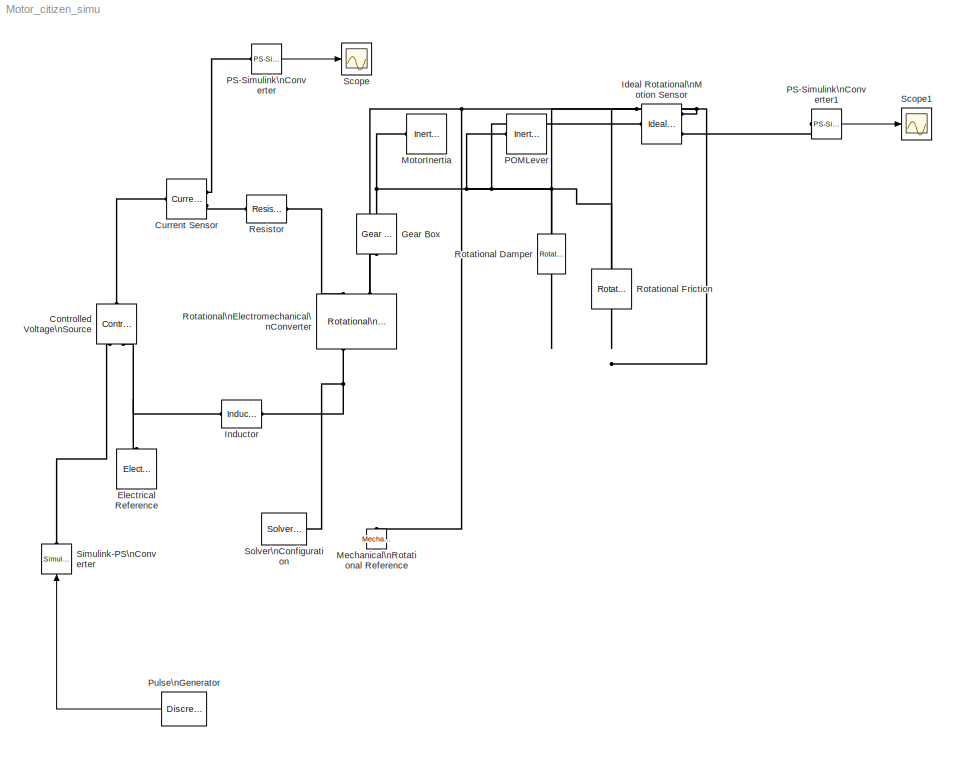
MODEL Motor_citizen_simu
KIND model
BLOCK [Reference] Controlled Voltage\nSource  REF=fl_lib/Electrical/Electrical Sources/Controlled Voltage\nSource
  ClassName = controlled_voltage_source
  DialogController = NetworkEngine.DynNeDlgSource
  FunctionWithSeparateData = off
  LocalVarDescs = |Current (A)|Voltage (V)|Power (W)
  LocalVarLogging = [0 0 0]
  LocalVarNames = |current|voltage|power
  Ports = [0, 0, 0, 0, 0, 1, 2]
  RTWMemSecDataConstants = Inherit from model
  RTWMemSecDataInternal = Inherit from model
  RTWMemSecDataParameters = Inherit from model
  RTWMemSecFuncExecute = Inherit from model
  RTWMemSecFuncInitTerm = Inherit from model
  SchemaVersion = 1
  ShowPortLabels = FromPortIcon
  SourceBlock = fl_lib/Electrical/Electrical Sources/Controlled Voltage\nSource
  SourceType = Controlled Voltage\nSource
  SystemSampleTime = -1
  current_Log = off
  power_Log = off
  voltage_Log = off
BLOCK [Reference] Current Sensor  REF=fl_lib/Electrical/Electrical Sensors/Current Sensor
  ClassName = sensor_current
  DialogController = NetworkEngine.DynNeDlgSource
  FunctionWithSeparateData = off
  LocalVarLogging = []
  Ports = [0, 0, 0, 0, 0, 1, 2]
  RTWMemSecDataConstants = Inherit from model
  RTWMemSecDataInternal = Inherit from model
  RTWMemSecDataParameters = Inherit from model
  RTWMemSecFuncExecute = Inherit from model
  RTWMemSecFuncInitTerm = Inherit from model
  SchemaVersion = 1
  ShowPortLabels = FromPortIcon
  SourceBlock = fl_lib/Electrical/Electrical Sensors/Current Sensor
  SourceType = Current Sensor
  SystemSampleTime = -1
BLOCK [Reference] Electrical Reference  REF=fl_lib/Electrical/Electrical Elements/Electrical Reference
  ClassName = reference_electrical
  DialogController = NetworkEngine.DynNeDlgSource
  FunctionWithSeparateData = off
  LocalVarLogging = []
  Ports = [0, 0, 0, 0, 0, 1]
  RTWMemSecDataConstants = Inherit from model
  RTWMemSecDataInternal = Inherit from model
  RTWMemSecDataParameters = Inherit from model
  RTWMemSecFuncExecute = Inherit from model
  RTWMemSecFuncInitTerm = Inherit from model
  SchemaVersion = 1
  ShowPortLabels = FromPortIcon
  SourceBlock = fl_lib/Electrical/Electrical Elements/Electrical Reference
  SourceType = Electrical Reference
  SystemSampleTime = -1
BLOCK [Reference] Gear Box  REF=fl_lib/Mechanical/Mechanisms/Gear Box
  ClassName = gear_box
  DialogController = NetworkEngine.DynNeDlgSource
  FunctionWithSeparateData = off
  LocalVarDescs = |Input shaft torque (N*m)|Input shaft angular velocity (rad/s)|Power transmitted by the box (W)
  LocalVarLogging = [0 0 0]
  LocalVarNames = |torque_inp|ang_velocity_inp|power
  Ports = [0, 0, 0, 0, 0, 1, 1]
  RTWMemSecDataConstants = Inherit from model
  RTWMemSecDataInternal = Inherit from model
  RTWMemSecDataParameters = Inherit from model
  RTWMemSecFuncExecute = Inherit from model
  RTWMemSecFuncInitTerm = Inherit from model
  SchemaVersion = 1
  ShowPortLabels = FromPortIcon
  SourceBlock = fl_lib/Mechanical/Mechanisms/Gear Box
  SourceType = Gear Box
  SystemSampleTime = -1
  ang_velocity_inp_Log = off
  power_Log = off
  ratio = 15.58
  ratio_unit = 1
  torque_inp_Log = off
BLOCK [Reference] Ideal Rotational\nMotion Sensor  REF=fl_lib/Mechanical/Mechanical Sensors\nand Sources/Ideal Rotational\nMotion Sensor
  ClassName = sensor_rot_motion
  DialogController = NetworkEngine.DynNeDlgSource
  FunctionWithSeparateData = off
  LocalVarLogging = []
  Ports = [0, 0, 0, 0, 0, 1, 3]
  RTWMemSecDataConstants = Inherit from model
  RTWMemSecDataInternal = Inherit from model
  RTWMemSecDataParameters = Inherit from model
  RTWMemSecFuncExecute = Inherit from model
  RTWMemSecFuncInitTerm = Inherit from model
  SchemaVersion = 1
  ShowPortLabels = FromPortIcon
  SourceBlock = fl_lib/Mechanical/Mechanical Sensors\nand Sources/Ideal Rotational\nMotion Sensor
  SourceType = Ideal Rotational\nMotion Sensor
  SystemSampleTime = -1
  offset = 0
  offset_unit = rad
BLOCK [Reference] Inductor  REF=fl_lib/Electrical/Electrical Elements/Inductor
  ClassName = inductor
  DialogController = NetworkEngine.DynNeDlgSource
  FunctionWithSeparateData = off
  LocalVarDescs = |Inductor current (A) |Voltage across inductor (V)|Power (W)
  LocalVarLogging = [0 0 0]
  LocalVarNames = |current|voltage|power
  Ports = [0, 0, 0, 0, 0, 1, 1]
  RTWMemSecDataConstants = Inherit from model
  RTWMemSecDataInternal = Inherit from model
  RTWMemSecDataParameters = Inherit from model
  RTWMemSecFuncExecute = Inherit from model
  RTWMemSecFuncInitTerm = Inherit from model
  SchemaVersion = 1
  ShowPortLabels = FromPortIcon
  SourceBlock = fl_lib/Electrical/Electrical Elements/Inductor
  SourceType = Inductor
  SystemSampleTime = -1
  current_Log = off
  g = 1e-09
  g_unit = 1/Ohm
  i0 = 0
  i0_unit = A
  l = 464e-06
  l_unit = H
  power_Log = off
  r = 0
  r_unit = Ohm
  voltage_Log = off
BLOCK [Reference] Mechanical\nRotational Reference  REF=fl_lib/Mechanical/Rotational Elements/Mechanical\nRotational Reference
  ClassName = reference_rot
  DialogController = NetworkEngine.DynNeDlgSource
  FunctionWithSeparateData = off
  LocalVarLogging = []
  Ports = [0, 0, 0, 0, 0, 1]
  RTWMemSecDataConstants = Inherit from model
  RTWMemSecDataInternal = Inherit from model
  RTWMemSecDataParameters = Inherit from model
  RTWMemSecFuncExecute = Inherit from model
  RTWMemSecFuncInitTerm = Inherit from model
  SchemaVersion = 1
  ShowPortLabels = FromPortIcon
  SourceBlock = fl_lib/Mechanical/Rotational Elements/Mechanical\nRotational Reference
  SourceType = Mechanical\nRotational Reference
  SystemSampleTime = -1
BLOCK [Reference] MotorInertia  REF=fl_lib/Mechanical/Rotational Elements/Inertia
  ClassName = inertia
  DialogController = NetworkEngine.DynNeDlgSource
  FunctionWithSeparateData = off
  LocalVarDescs = |Inertia torque (N*m)|Inertia absolute velocity (rad/s)
  LocalVarLogging = [0 0]
  LocalVarNames = |torque|velocity
  Ports = [0, 0, 0, 0, 0, 1]
  RTWMemSecDataConstants = Inherit from model
  RTWMemSecDataInternal = Inherit from model
  RTWMemSecDataParameters = Inherit from model
  RTWMemSecFuncExecute = Inherit from model
  RTWMemSecFuncInitTerm = Inherit from model
  SchemaVersion = 1
  ShowPortLabels = FromPortIcon
  SourceBlock = fl_lib/Mechanical/Rotational Elements/Inertia
  SourceType = Inertia
  SystemSampleTime = -1
  inertia = 0.841
  inertia_unit = g*cm^2
  initial_velocity = 0
  initial_velocity_unit = rad/s
  torque_Log = off
  velocity_Log = off
BLOCK [Reference] POMLever  REF=fl_lib/Mechanical/Rotational Elements/Inertia
  ClassName = inertia
  DialogController = NetworkEngine.DynNeDlgSource
  FunctionWithSeparateData = off
  LocalVarDescs = |Inertia torque (N*m)|Inertia absolute velocity (rad/s)
  LocalVarLogging = [0 0]
  LocalVarNames = |torque|velocity
  Ports = [0, 0, 0, 0, 0, 1]
  RTWMemSecDataConstants = Inherit from model
  RTWMemSecDataInternal = Inherit from model
  RTWMemSecDataParameters = Inherit from model
  RTWMemSecFuncExecute = Inherit from model
  RTWMemSecFuncInitTerm = Inherit from model
  SchemaVersion = 1
  ShowPortLabels = FromPortIcon
  SourceBlock = fl_lib/Mechanical/Rotational Elements/Inertia
  SourceType = Inertia
  SystemSampleTime = -1
  inertia = 1.613
  inertia_unit = g*cm^2
  initial_velocity = 0
  initial_velocity_unit = rad/s
  torque_Log = off
  velocity_Log = off
BLOCK [Reference] PS-Simulink\nConverter  REF=nesl_utility/PS-Simulink\nConverter
  AffineConversion = off
  DialogController = NetworkEngine.DynNeUtilDlgSource
  FunctionWithSeparateData = off
  LeftPortType = input
  PhysicalDomain = network_engine_domain
  Ports = [0, 1, 0, 0, 0, 1]
  RTWMemSecDataConstants = Inherit from model
  RTWMemSecDataInternal = Inherit from model
  RTWMemSecDataParameters = Inherit from model
  RTWMemSecFuncExecute = Inherit from model
  RTWMemSecFuncInitTerm = Inherit from model
  RightPortType = output
  ShowPortLabels = FromPortIcon
  SourceBlock = nesl_utility/PS-Simulink\nConverter
  SourceType = PS-Simulink\nConverter
  SubClassName = ps_output
  SystemSampleTime = -1
  Unit = A
BLOCK [Reference] PS-Simulink\nConverter1  REF=nesl_utility/PS-Simulink\nConverter
  AffineConversion = off
  DialogController = NetworkEngine.DynNeUtilDlgSource
  FunctionWithSeparateData = off
  LeftPortType = input
  PhysicalDomain = network_engine_domain
  Ports = [0, 1, 0, 0, 0, 1]
  RTWMemSecDataConstants = Inherit from model
  RTWMemSecDataInternal = Inherit from model
  RTWMemSecDataParameters = Inherit from model
  RTWMemSecFuncExecute = Inherit from model
  RTWMemSecFuncInitTerm = Inherit from model
  RightPortType = output
  ShowPortLabels = FromPortIcon
  SourceBlock = nesl_utility/PS-Simulink\nConverter
  SourceType = PS-Simulink\nConverter
  SubClassName = ps_output
  SystemSampleTime = -1
  Unit = deg
BLOCK [DiscretePulseGenerator] Pulse\nGenerator
  Amplitude = 12
  Period = 0.00005
  Ports = [0, 1]
  PulseType = Time based
  PulseWidth = 50
BLOCK [Reference] Resistor  REF=fl_lib/Electrical/Electrical Elements/Resistor
  ClassName = resistor
  DialogController = NetworkEngine.DynNeDlgSource
  FunctionWithSeparateData = off
  LocalVarDescs = |Resistor current (A)|Voltage across resistor (V)|Power (W)
  LocalVarLogging = [0 0 0]
  LocalVarNames = |current|voltage|power
  Ports = [0, 0, 0, 0, 0, 1, 1]
  R = 14
  RTWMemSecDataConstants = Inherit from model
  RTWMemSecDataInternal = Inherit from model
  RTWMemSecDataParameters = Inherit from model
  RTWMemSecFuncExecute = Inherit from model
  RTWMemSecFuncInitTerm = Inherit from model
  R_unit = Ohm
  SchemaVersion = 1
  ShowPortLabels = FromPortIcon
  SourceBlock = fl_lib/Electrical/Electrical Elements/Resistor
  SourceType = Resistor
  SystemSampleTime = -1
  current_Log = off
  power_Log = off
  voltage_Log = off
BLOCK [Reference] Rotational Damper  REF=fl_lib/Mechanical/Rotational Elements/Rotational Damper
  ClassName = damper_rot
  D = 0.001
  D_unit = N*m/(rad/s)
  DialogController = NetworkEngine.DynNeDlgSource
  FunctionWithSeparateData = off
  LocalVarDescs = |Damping torque (N*m)|Damper relative velocity (rad/s)|Power dissipated in the damper (W)
  LocalVarLogging = [0 0 0]
  LocalVarNames = |torque|velocity|power
  Ports = [0, 0, 0, 0, 0, 1, 1]
  RTWMemSecDataConstants = Inherit from model
  RTWMemSecDataInternal = Inherit from model
  RTWMemSecDataParameters = Inherit from model
  RTWMemSecFuncExecute = Inherit from model
  RTWMemSecFuncInitTerm = Inherit from model
  SchemaVersion = 1
  ShowPortLabels = FromPortIcon
  SourceBlock = fl_lib/Mechanical/Rotational Elements/Rotational Damper
  SourceType = Rotational Damper
  SystemSampleTime = -1
  power_Log = off
  torque_Log = off
  velocity_Log = off
BLOCK [Reference] Rotational Friction  REF=fl_lib/Mechanical/Rotational Elements/Rotational Friction
  ClassName = friction_rot
  Col_trq = 0.02e-3
  Col_trq_unit = N*m
  DialogController = NetworkEngine.DynNeDlgSource
  FunctionWithSeparateData = off
  LocalVarDescs = |Friction torque (N*m)|Relative velocity (rad/s)|Power (W)
  LocalVarLogging = [0 0 0]
  LocalVarNames = |friction_torque|rel_velocity|power
  Ports = [0, 0, 0, 0, 0, 1, 1]
  RTWMemSecDataConstants = Inherit from model
  RTWMemSecDataInternal = Inherit from model
  RTWMemSecDataParameters = Inherit from model
  RTWMemSecFuncExecute = Inherit from model
  RTWMemSecFuncInitTerm = Inherit from model
  SchemaVersion = 1
  ShowPortLabels = FromPortIcon
  SourceBlock = fl_lib/Mechanical/Rotational Elements/Rotational Friction
  SourceType = Rotational Friction
  SystemSampleTime = -1
  brkwy_trq = 0.02e-3
  brkwy_trq_unit = N*m
  friction_torque_Log = off
  power_Log = off
  rel_velocity_Log = off
  trans_coef = 10
  trans_coef_unit = s/rad
  vel_thr = 0.1
  vel_thr_unit = rad/s
  visc_coef = 0.0
  visc_coef_unit = N*m/(rad/s)
BLOCK [Reference] Rotational\nElectromechanical\nConverter  REF=fl_lib/Electrical/Electrical Elements/Rotational\nElectromechanical\nConverter
  ClassName = rotational_converter
  DialogController = NetworkEngine.DynNeDlgSource
  FunctionWithSeparateData = off
  K = 0.01807
  K_unit = V/(rad/s)
  LocalVarDescs = |Current (A)|Voltage (V)|Power (W)|Torque (Nm)|Angular speed (rad/s)
  LocalVarLogging = [0 0 0 0 0]
  LocalVarNames = |current|voltage|power|torque|speed
  Ports = [0, 0, 0, 0, 0, 2, 2]
  RTWMemSecDataConstants = Inherit from model
  RTWMemSecDataInternal = Inherit from model
  RTWMemSecDataParameters = Inherit from model
  RTWMemSecFuncExecute = Inherit from model
  RTWMemSecFuncInitTerm = Inherit from model
  SchemaVersion = 1
  ShowPortLabels = FromPortIcon
  SourceBlock = fl_lib/Electrical/Electrical Elements/Rotational\nElectromechanical\nConverter
  SourceType = Rotational\nElectromechanical\nConverter
  SystemSampleTime = -1
  current_Log = off
  power_Log = off
  speed_Log = off
  torque_Log = off
  voltage_Log = off
BLOCK [Scope] Scope
  DataFormat = StructureWithTime
  Floating = off
  NumInputPorts = 1
  Ports = [1]
  SampleTime = 0
BLOCK [Scope] Scope1
  DataFormat = StructureWithTime
  Floating = off
  NumInputPorts = 1
  Ports = [1]
  SampleTime = 0
  SaveName = ScopeData1
BLOCK [Reference] Simulink-PS\nConverter  REF=nesl_utility/Simulink-PS\nConverter
  AffineConversion = off
  DialogController = NetworkEngine.DynNeUtilDlgSource
  FunctionWithSeparateData = off
  LeftPortType = input
  PhysicalDomain = network_engine_domain
  Ports = [1, 0, 0, 0, 0, 0, 1]
  RTWMemSecDataConstants = Inherit from model
  RTWMemSecDataInternal = Inherit from model
  RTWMemSecDataParameters = Inherit from model
  RTWMemSecFuncExecute = Inherit from model
  RTWMemSecFuncInitTerm = Inherit from model
  RightPortType = output
  ShowPortLabels = FromPortIcon
  SourceBlock = nesl_utility/Simulink-PS\nConverter
  SourceType = Simulink-PS\nConverter
  SubClassName = ps_input
  SystemSampleTime = -1
  Unit = V
BLOCK [Reference] Solver\nConfiguration  REF=nesl_utility/Solver\nConfiguration
  Accelerate = off
  DialogController = NetworkEngine.DynNeUtilDlgSource
  DoDC = off
  DoFixedCost = off
  FunctionWithSeparateData = off
  LeftPortType = input
  LinearAlgebra = Sparse
  MaxModeIter = 2
  MaxNonlinIter = 12
  PhysicalDomain = network_engine_domain
  Ports = [0, 0, 0, 0, 0, 0, 1]
  Profile = off
  RTWMemSecDataConstants = Inherit from model
  RTWMemSecDataInternal = Inherit from model
  RTWMemSecDataParameters = Inherit from model
  RTWMemSecFuncExecute = Inherit from model
  RTWMemSecFuncInitTerm = Inherit from model
  ResidualTolerance = 1e-9
  RightPortType = generic
  ShowPortLabels = FromPortIcon
  SourceBlock = nesl_utility/Solver\nConfiguration
  SourceType = Solver\nConfiguration
  SubClassName = solver
  SystemSampleTime = -1
LINE PS-Simulink\nConverter1:1 -> Scope1:1
LINE PS-Simulink\nConverter:1 -> Scope:1
LINE Pulse\nGenerator:1 -> Simulink-PS\nConverter:1
PLINE Controlled Voltage\nSource:LConn1 -- Current Sensor:LConn1
PLINE Controlled Voltage\nSource:RConn1 -- Simulink-PS\nConverter:RConn1
PNET net1: Controlled Voltage\nSource:RConn2 -- Electrical Reference:LConn1 -- Inductor:LConn1
PLINE Current Sensor:RConn1 -- PS-Simulink\nConverter:LConn1
PLINE Current Sensor:RConn2 -- Resistor:LConn1
PLINE Gear Box:LConn1 -- Rotational\nElectromechanical\nConverter:LConn2
PNET net2: Gear Box:RConn1 -- Ideal Rotational\nMotion Sensor:LConn1 -- MotorInertia:LConn1 -- POMLever:LConn1 -- Rotational Damper:LConn1 -- Rotational Friction:LConn1
PNET net3: Ideal Rotational\nMotion Sensor:RConn1 -- Mechanical\nRotational Reference:LConn1 -- Rotational Damper:RConn1 -- Rotational Friction:RConn1 -- Rotational\nElectromechanical\nConverter:RConn2
PLINE Ideal Rotational\nMotion Sensor:RConn3 -- PS-Simulink\nConverter1:LConn1
PNET net4: Inductor:RConn1 -- Rotational\nElectromechanical\nConverter:RConn1 -- Solver\nConfiguration:RConn1
PLINE Resistor:RConn1 -- Rotational\nElectromechanical\nConverter:LConn1
note: PNET lines group multi-terminal physical nets as a canonical sorted terminal list (undirected conserving connections); 2-terminal nets keep the pairwise PLINE form
